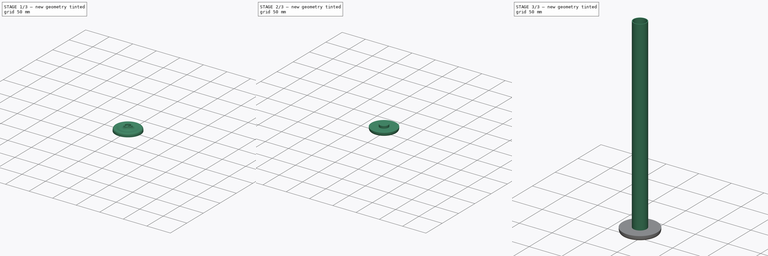
[diagram: build sequence overview — one tinted view per stage of 3, left to right]
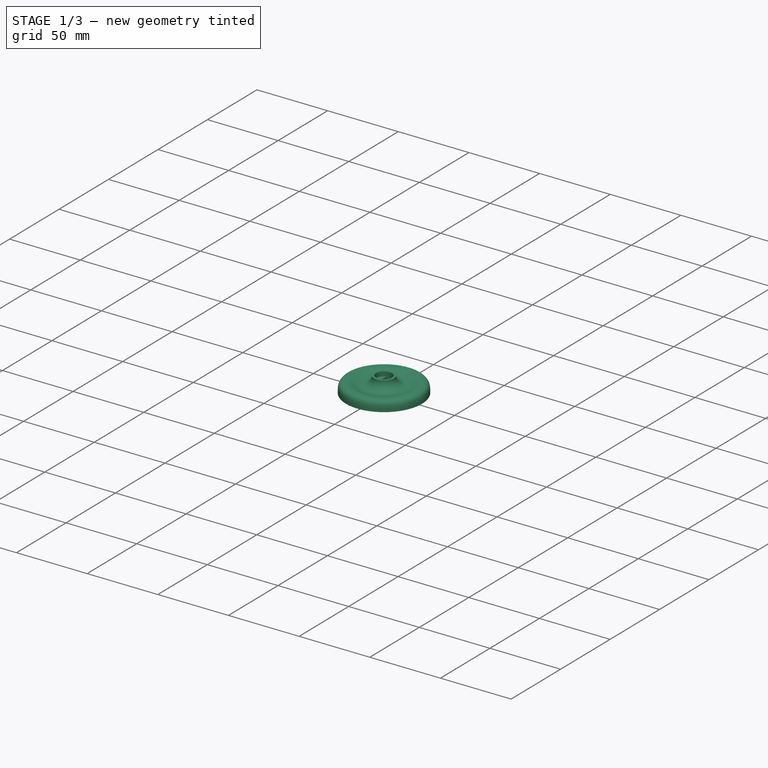
[diagram: stage 1 of 3 — iso view after this stage's code; geometry added in this stage tinted green]
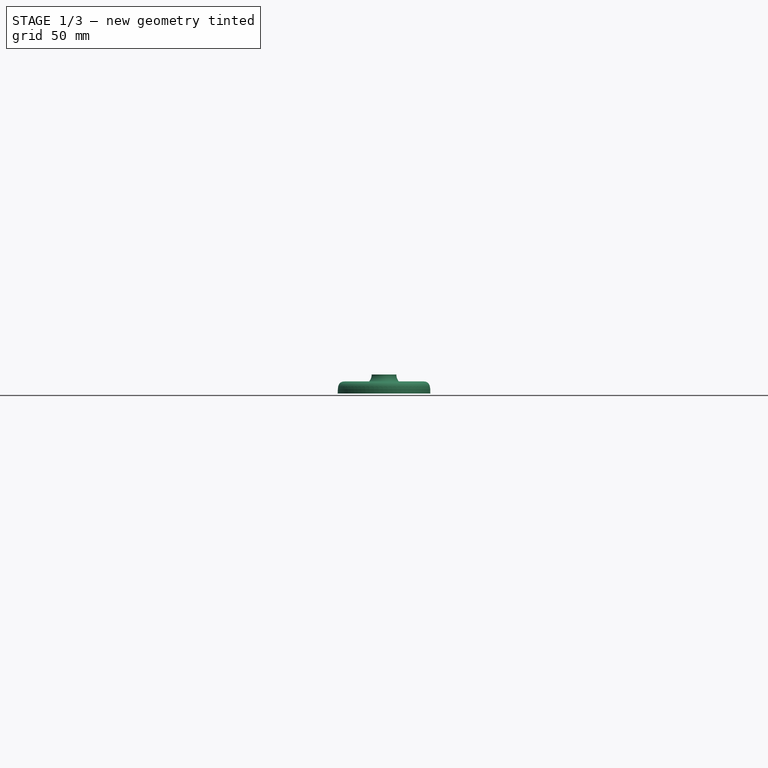
[diagram: stage 1 of 3 — front view after this stage's code; geometry added in this stage tinted green]
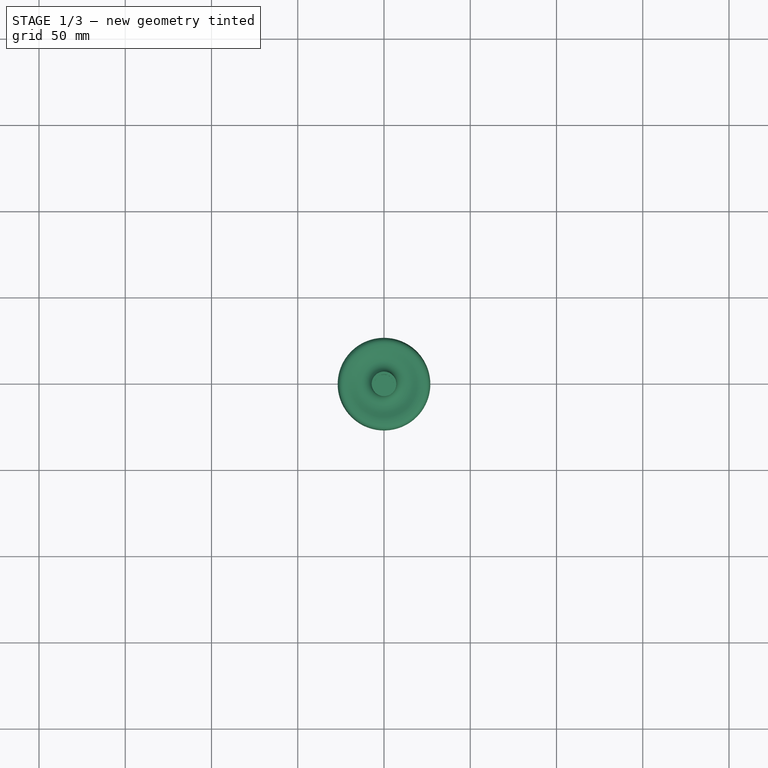
[diagram: stage 1 of 3 — top view after this stage's code; geometry added in this stage tinted green]
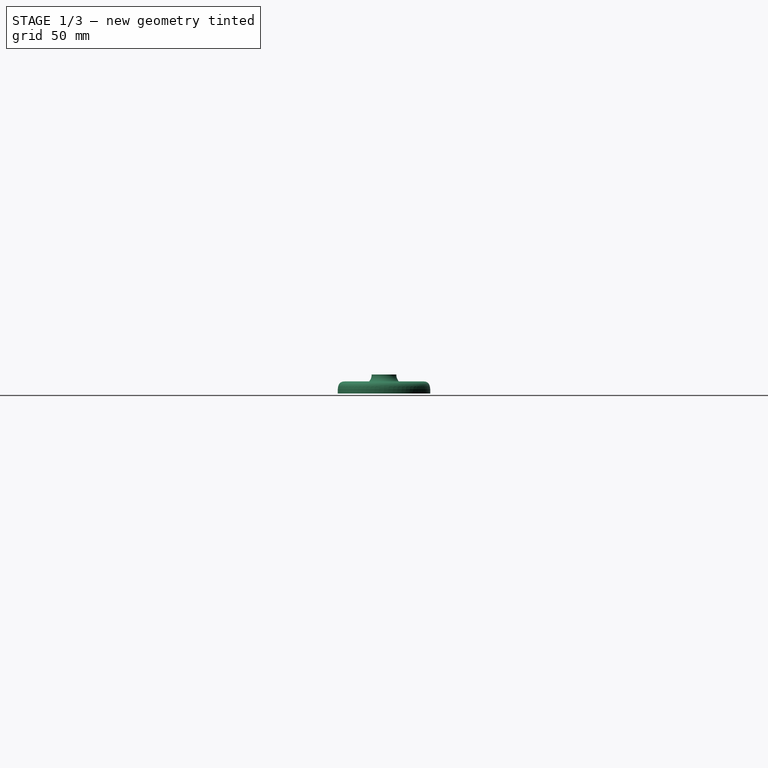
[diagram: stage 1 of 3 — right view after this stage's code; geometry added in this stage tinted green]
FCSTD DOCUMENT  (FreeCAD 1.0R39319 (Git))
Label: roll
License: All rights reserved
LicenseURL: https://en.wikipedia.org/wiki/All_rights_reserved
objects: Sketcher::SketchObject×5, PartDesign::Pad×2, PartDesign::Body×2, PartDesign::Revolution×1, PartDesign::Pocket×1, App::VarSet×1, PartDesign::Hole×1, Part::Mirroring×1
note: 28 computed .brp shape members not serialized (recipe doc carries the construction recipe); baked Part::Feature solids carry a one-line shape summary decoded from their .brp

FEATURE [Sketcher::SketchObject] Sketch
  ArcFitTolerance = 1e-06
  AttachmentSupport = -> [XZ_Plane001]
  FullyConstrained = true
  MakeInternals = false
  MapMode = 5
  Placement = pos=(0,0,0) rot=(1,0,0;1.5708rad)
  sketch-geometry (25):
    g0: LineSegment StartX=0 StartY=0 StartZ=0 EndX=0 EndY=7.85 EndZ=0
    g1: LineSegment StartX=0 StartY=7.85 StartZ=0 EndX=5.5 EndY=7.85 EndZ=0
    g2: LineSegment StartX=5.5 StartY=7.85 StartZ=0 EndX=5.5 EndY=11 EndZ=0
    g3: LineSegment StartX=5.5 StartY=11 StartZ=0 EndX=7.15 EndY=11 EndZ=0
    g4: LineSegment [constr] StartX=7.15 StartY=11 StartZ=0 EndX=13.25 EndY=11 EndZ=0
    g5: ArcOfCircle CenterX=13.25 CenterY=11 CenterZ=0 NormalX=0 NormalY=0 NormalZ=1 AngleXU=0 Radius=6.1 StartAngle=3.14159 EndAngle=4.71239
    g6: LineSegment StartX=0 StartY=0 StartZ=0 EndX=26.85 EndY=0 EndZ=0
    g7: GeomPoint [constr] X=26.85 Y=0 Z=0
    g8: GeomPoint [constr] X=22.75 Y=7 Z=0
    g9: BSplineCurve PolesCount=4 KnotsCount=2 Degree=3 IsPeriodic=0
    g10-g13: Circle [constr] x4 (B-spline internal-alignment scaffolding for g9; pole/knot coordinates omitted)
    g14: LineSegment [constr] StartX=26.85 StartY=0 StartZ=0 EndX=26.85 EndY=3.5 EndZ=0
    g15: LineSegment [constr] StartX=22.75 StartY=7 StartZ=0 EndX=26.85 EndY=7 EndZ=0
    g16: GeomPoint [constr] X=13.25 Y=4.9 Z=0
    g17: GeomPoint [constr] X=22.75 Y=7 Z=0
    g18: BSplineCurve PolesCount=4 KnotsCount=2 Degree=3 IsPeriodic=0
    g19-g22: Circle [constr] x4 (B-spline internal-alignment scaffolding for g18; pole/knot coordinates omitted)
    g23: LineSegment [constr] StartX=18.65 StartY=7 StartZ=0 EndX=22.75 EndY=7 EndZ=0
    g24: LineSegment [constr] StartX=17.35 StartY=4.9 StartZ=0 EndX=13.25 EndY=4.9 EndZ=0
  constraints (62):
    c: Distance(g0) = 7.85
    c: Coincident(g0,g-1)
    c: PointOnObject(g0,g-2)
    c: Distance(g1) = 5.5
    c: Coincident(g1,g0)
    c: Horizontal(g1)
    c: Distance(g2) = 3.15
    c: Coincident(g2,g1)
    c: Vertical(g2)
    c: Distance(g3) = 1.65
    c: Coincident(g3,g2)
    c: Horizontal(g3)
    c: Distance(g4) = 6.1
    c: Coincident(g4,g3)
    c: Horizontal(g4)
    c: Angle(g5) = 1.5708
    c: PointOnObject(g5,g4)
    c: Coincident(g5,g3)
    c: DistanceX(g3,g5) = 6.1
    c: Distance(g6) = 26.85
    c: Coincident(g6,g0)
    c: PointOnObject(g6,g-1)
    c: InternalAlignment(g7,g9)
    c: InternalAlignment(g8,g9)
    c: InternalAlignment(g10,g9)
    c: Weight(g10) = 1
    c: InternalAlignment(g11,g9)
    c: Equal(g11,g10)
    c: InternalAlignment(g12,g9)
    c: Equal(g12,g10)
    c: InternalAlignment(g13,g9)
    c: Equal(g13,g10)
    c: Coincident(g7,g6)
    c: DistanceY(g-1,g9) = 7
    c: DistanceX(g9,g9) = 4.1
    c: Coincident(g14,g9)
    c: Coincident(g14,g11)
    c: Parallel(g14,g0)
    c: Coincident(g15,g9)
    c: Coincident(g15,g12)
    c: Parallel(g15,g6)
    c: Symmetric(g12,g6,g11)
    c: InternalAlignment(g16,g18)
    c: InternalAlignment(g17,g18)
    c: InternalAlignment(g19,g18)
    c: Weight(g19) = 1
    c: InternalAlignment(g20,g18)
    c: Equal(g20,g19)
    c: InternalAlignment(g21,g18)
    c: Equal(g21,g19)
    c: InternalAlignment(g22,g18)
    c: Equal(g22,g19)
    c: Coincident(g16,g5)
    c: Coincident(g17,g9)
    c: Coincident(g23,g21)
    c: Coincident(g23,g18)
    c: Coincident(g24,g20)
    c: Coincident(g24,g18)
    c: Parallel(g23,g6)
    c: Parallel(g24,g6)
    c: Equal(g23,g24)
    c: Equal(g23,g15)
FEATURE [PartDesign::Revolution] Revolution
  Angle = 360
  Angle2 = 60
  Axis = (0,2e-16,1)
  Base = (0,0,0)
  Placement = pos=(0,0,0) rot=(1,0,0;1.5708rad)
  Profile = -> Sketch
  ReferenceAxis = -> Sketch [V_Axis]
  Refine = true
  Reversed = true
  Suppressed = false
  Type = 0
FEATURE [Sketcher::SketchObject] Sketch001
  ArcFitTolerance = 1e-06
  AttachmentSupport = -> [Revolution]
  ExternalGeometry = -> [Revolution]
  FullyConstrained = true
  MakeInternals = false
  MapMode = 5
  Placement = pos=(0,3.5e-15,7.85) rot=(0,0,1;3.14159rad)
  sketch-geometry (4):
    g0: LineSegment StartX=1.75 StartY=-5.21416 StartZ=0 EndX=1.75 EndY=5.21416 EndZ=0
    g1: LineSegment StartX=-1.75 StartY=-5.21416 StartZ=0 EndX=-1.75 EndY=5.21416 EndZ=0
    g2: ArcOfCircle CenterX=0 CenterY=0 CenterZ=0 NormalX=0 NormalY=0 NormalZ=1 AngleXU=0 Radius=5.5 StartAngle=1.24699 EndAngle=1.89461
    g3: ArcOfCircle CenterX=0 CenterY=0 CenterZ=0 NormalX=0 NormalY=0 NormalZ=1 AngleXU=0 Radius=5.5 StartAngle=4.38858 EndAngle=5.0362
  constraints (12):
    c: Vertical(g0)
    c: Vertical(g1)
    c: Coincident(g2,g-1)
    c: Coincident(g2,g0)
    c: Coincident(g2,g1)
    c: Coincident(g3,g2)
    c: Coincident(g3,g1)
    c: Coincident(g3,g0)
    c: DistanceX(g2,g0) = 1.75
    c: Equal(g1,g0)
    c: PointOnObject(g1,g-3)
    c: PointOnObject(g1,g-3)
FEATURE [PartDesign::Pocket] Pocket
  BaseFeature = -> Revolution
  Direction = (0,0,-1)
  Length = 5.85
  Length2 = 5
  Placement = pos=(0,0,0) rot=(1,0,0;1.5708rad)
  Profile = -> Sketch001
  ReferenceAxis = -> Sketch001 [N_Axis]
  Refine = true
  Suppressed = false
  Type = 0
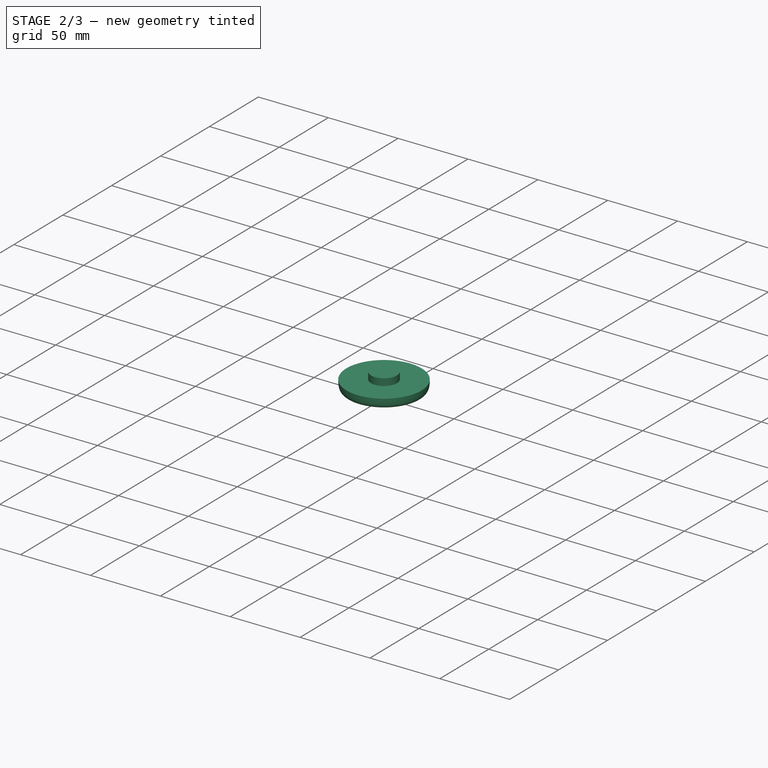
[diagram: stage 2 of 3 — iso view after this stage's code; geometry added in this stage tinted green]
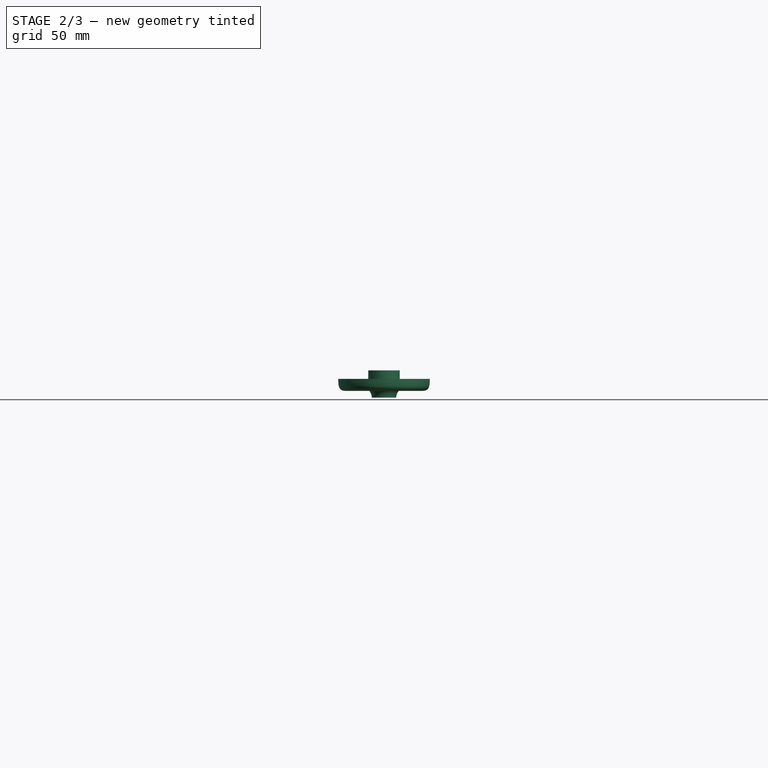
[diagram: stage 2 of 3 — front view after this stage's code; geometry added in this stage tinted green]
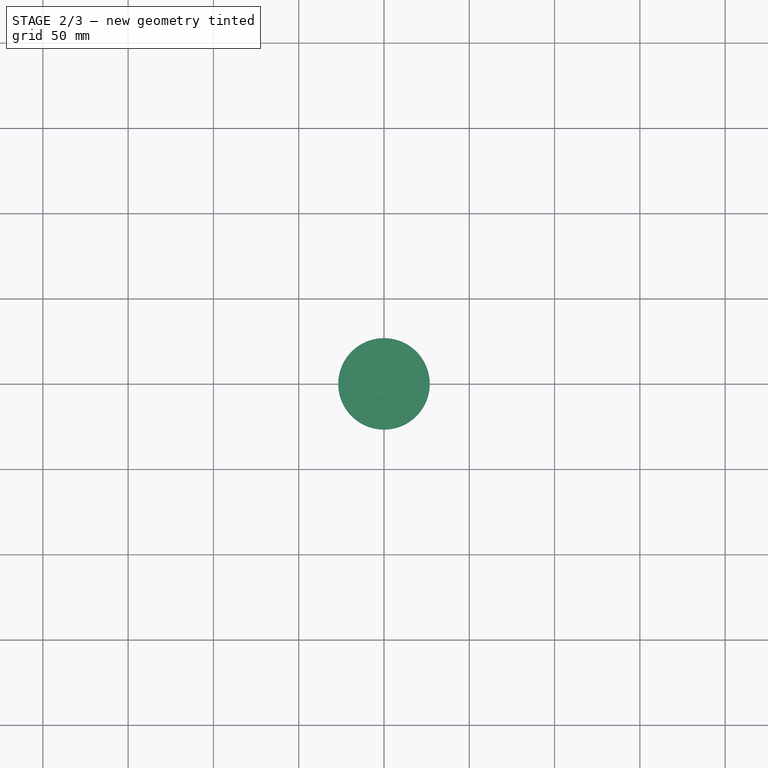
[diagram: stage 2 of 3 — top view after this stage's code; geometry added in this stage tinted green]
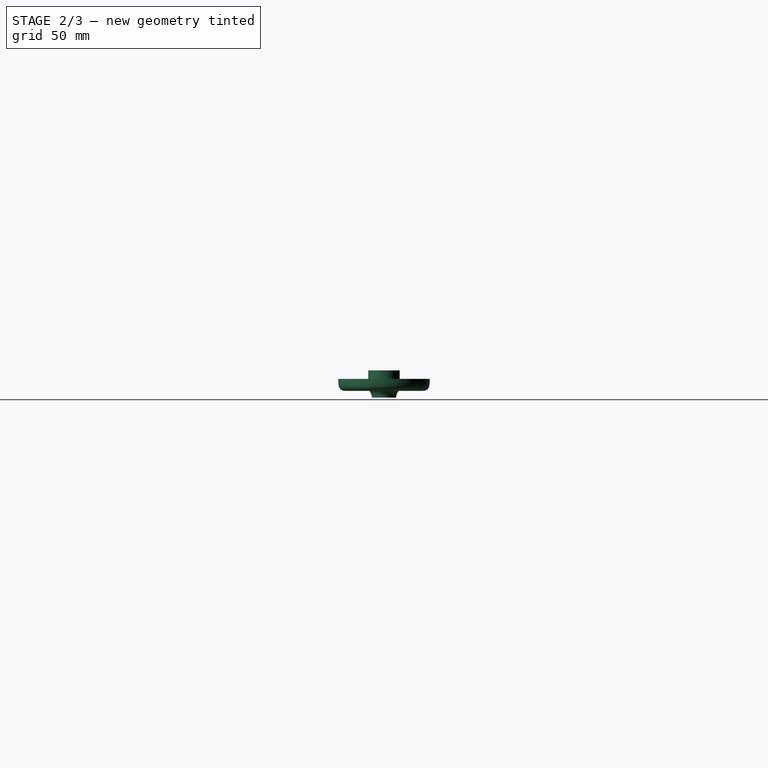
[diagram: stage 2 of 3 — right view after this stage's code; geometry added in this stage tinted green]
FEATURE [Sketcher::SketchObject] Sketch002
  ArcFitTolerance = 1e-06
  AttachmentSupport = -> [XY_Plane001]
  FullyConstrained = true
  MakeInternals = false
  MapMode = 5
  expr: Constraints[0] = VarSet.id
  sketch-geometry (1):
    g0: Circle CenterX=0 CenterY=0 CenterZ=0 NormalX=0 NormalY=0 NormalZ=1 AngleXU=0 Radius=9.25
  constraints (2):
    c: Diameter(g0) = 18.5
    c: Coincident(g0,g-1)
FEATURE [PartDesign::Pad] Pad
  BaseFeature = -> Pocket
  Direction = (0,0,1)
  Length = 5
  Length2 = 10
  Placement = pos=(0,0,0) rot=(1,0,0;1.5708rad)
  Profile = -> Sketch002
  ReferenceAxis = -> Sketch002 [N_Axis]
  Refine = true
  Reversed = true
  Suppressed = false
  Type = 0
FEATURE [PartDesign::Body] Body  label="Spool"
  AllowCompound = false
  Group = -> [Sketch003,Pad001,Sketch004,Hole]
  Origin = -> Origin
  Tip = -> Hole
FEATURE [Part::Mirroring] Part__Mirroring  label="EndCap (Mirror #1)"
  Base = (0,0,-142.875)
  Normal = (0,0,1)
  Source = -> Body001
  expr: .Base.z = -VarSet.length / 2
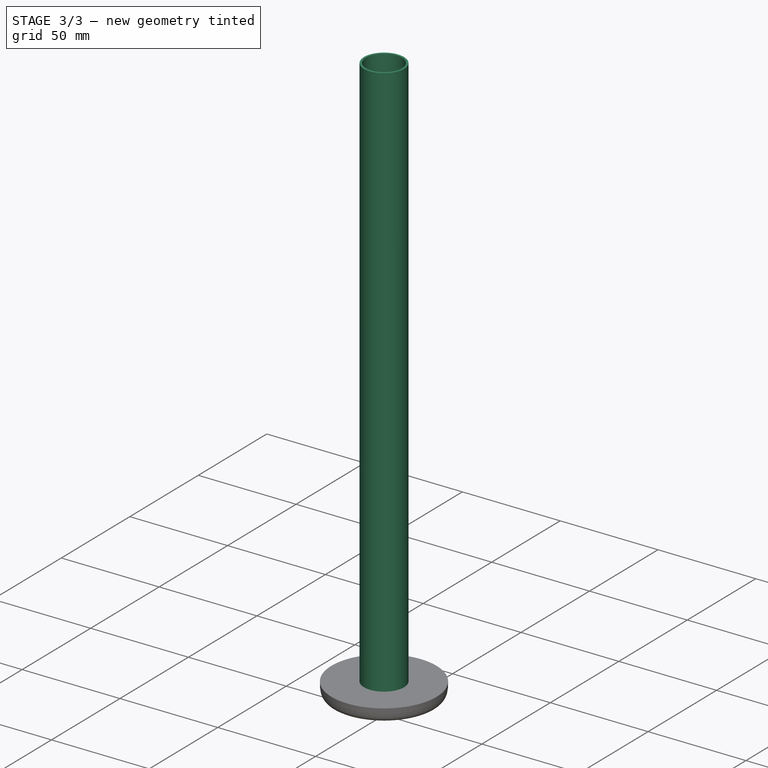
[diagram: stage 3 of 3 — iso view after this stage's code; geometry added in this stage tinted green]
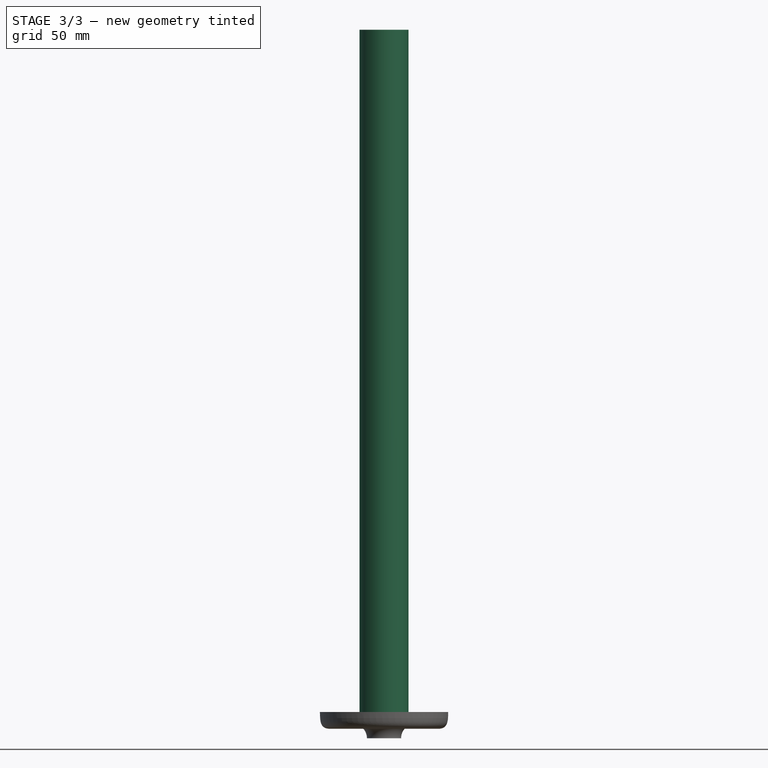
[diagram: stage 3 of 3 — front view after this stage's code; geometry added in this stage tinted green]
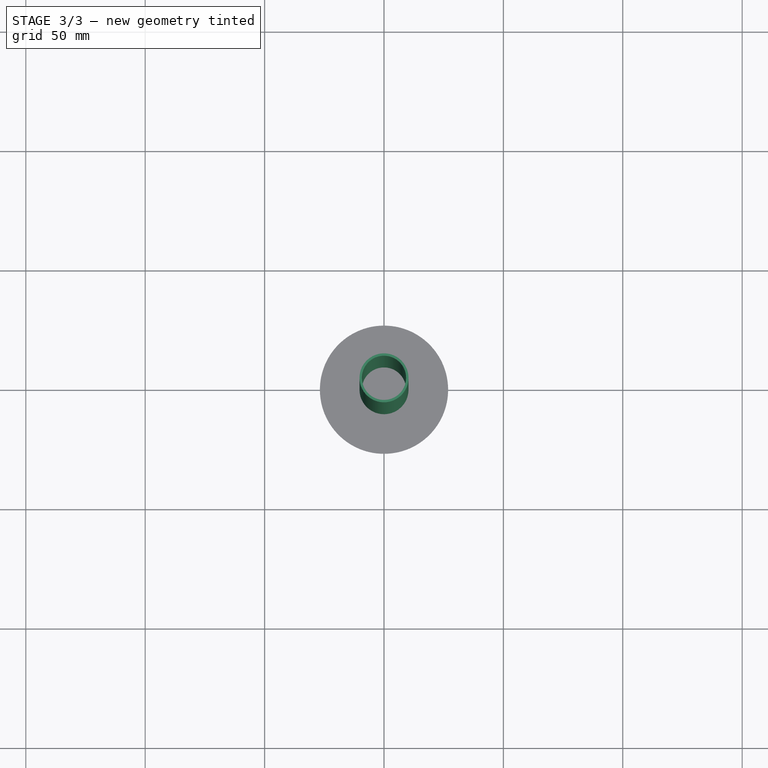
[diagram: stage 3 of 3 — top view after this stage's code; geometry added in this stage tinted green]
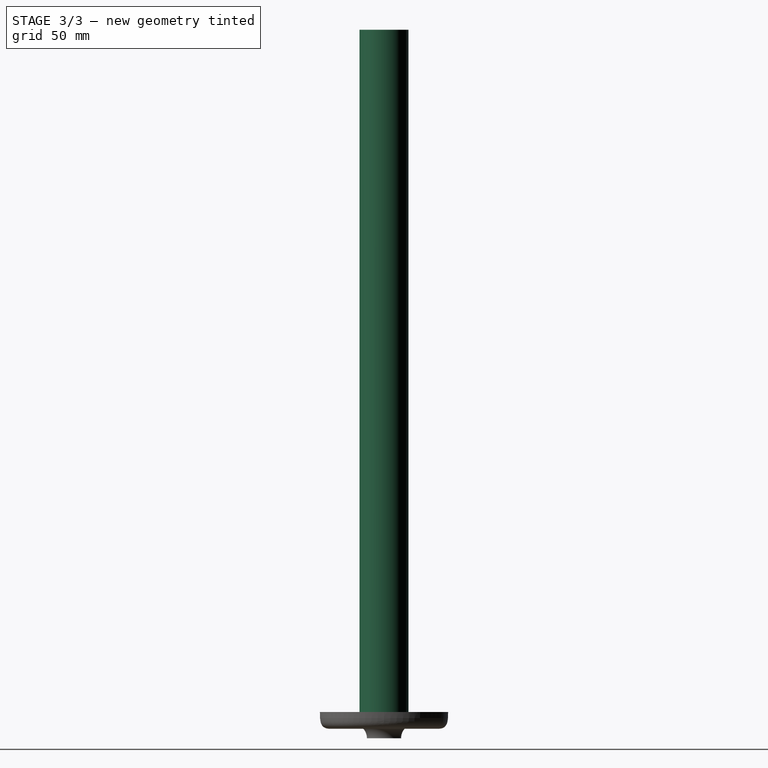
[diagram: stage 3 of 3 — right view after this stage's code; geometry added in this stage tinted green]
FEATURE [PartDesign::Body] Body001  label="EndCap"
  AllowCompound = false
  Group = -> [Sketch,Revolution,Sketch001,Pocket,Sketch002,Pad]
  Origin = -> Origin001
  Tip = -> Pad
FEATURE [Sketcher::SketchObject] Sketch003
  ArcFitTolerance = 1e-06
  AttachmentSupport = -> [XY_Plane]
  FullyConstrained = true
  MakeInternals = false
  MapMode = 5
  expr: Constraints[1] = VarSet.od
  sketch-geometry (1):
    g0: Circle CenterX=0 CenterY=0 CenterZ=0 NormalX=0 NormalY=0 NormalZ=1 AngleXU=0 Radius=10.25
  constraints (2):
    c: Coincident(g0,g-1)
    c: Diameter(g0) = 20.5
FEATURE [App::VarSet] VarSet
  id = 18.5
  length = 285.75
  od = 20.5
  expr: od = id + 2 mm
FEATURE [PartDesign::Pad] Pad001
  Direction = (0,0,1)
  Length = 285.75
  Length2 = 10
  Profile = -> Sketch003 [Edge1]
  ReferenceAxis = -> Sketch003 [N_Axis]
  Refine = true
  Reversed = true
  Suppressed = false
  Type = 0
  expr: Length = VarSet.length
FEATURE [Sketcher::SketchObject] Sketch004
  ArcFitTolerance = 1e-06
  AttachmentSupport = -> [Pad001]
  FullyConstrained = true
  MakeInternals = false
  MapMode = 5
  Placement = pos=(0,0,-285.75) rot=(1,0,0;3.14159rad)
  expr: Constraints[1] = VarSet.id
  sketch-geometry (1):
    g0: Circle CenterX=0 CenterY=0 CenterZ=0 NormalX=0 NormalY=0 NormalZ=1 AngleXU=0 Radius=9.25
  constraints (2):
    c: Coincident(g0,g-1)
    c: Diameter(g0) = 18.5
FEATURE [PartDesign::Hole] Hole
  BaseFeature = -> Pad001
  CustomThreadClearance = 0
  Depth = 580.157
  DepthType = 1
  Diameter = 18.5
  DrillForDepth = false
  DrillPoint = 1
  DrillPointAngle = 118
  HoleCutCountersinkAngle = 90
  HoleCutCustomValues = false
  HoleCutDepth = 0
  HoleCutDiameter = 0
  HoleCutType = 0
  ModelThread = false
  Profile = -> Sketch004
  Refine = true
  Suppressed = false
  Tapered = false
  TaperedAngle = 90
  ThreadClass = 0
  ThreadDepth = 580.157
  ThreadDepthType = 0
  ThreadDirection = 0
  ThreadFit = 0
  ThreadSize = 0
  ThreadType = 0
  Threaded = false
  UseCustomThreadClearance = false
  expr: Diameter = VarSet.id
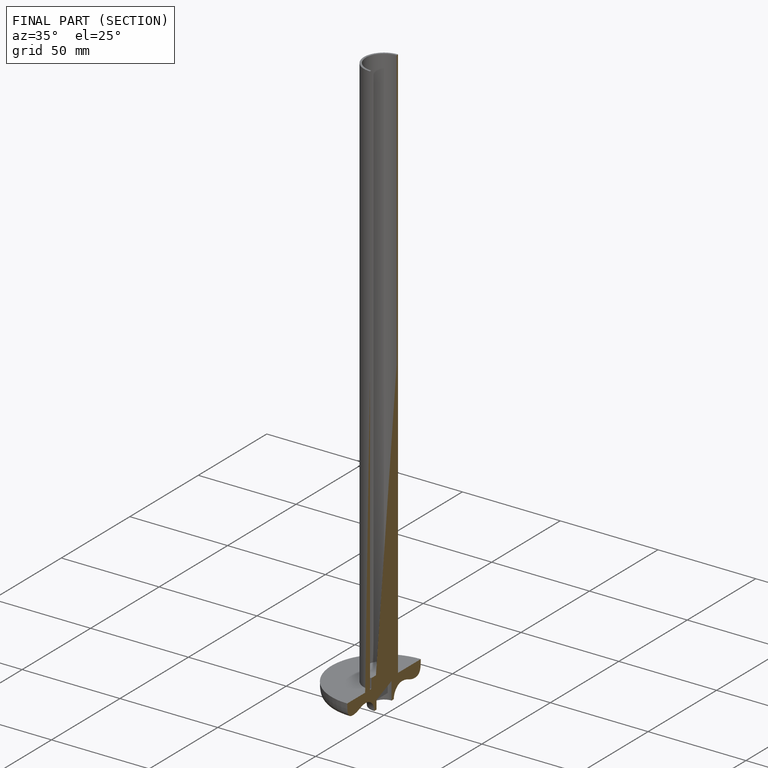
[diagram: finished part — half-section view (interior)]
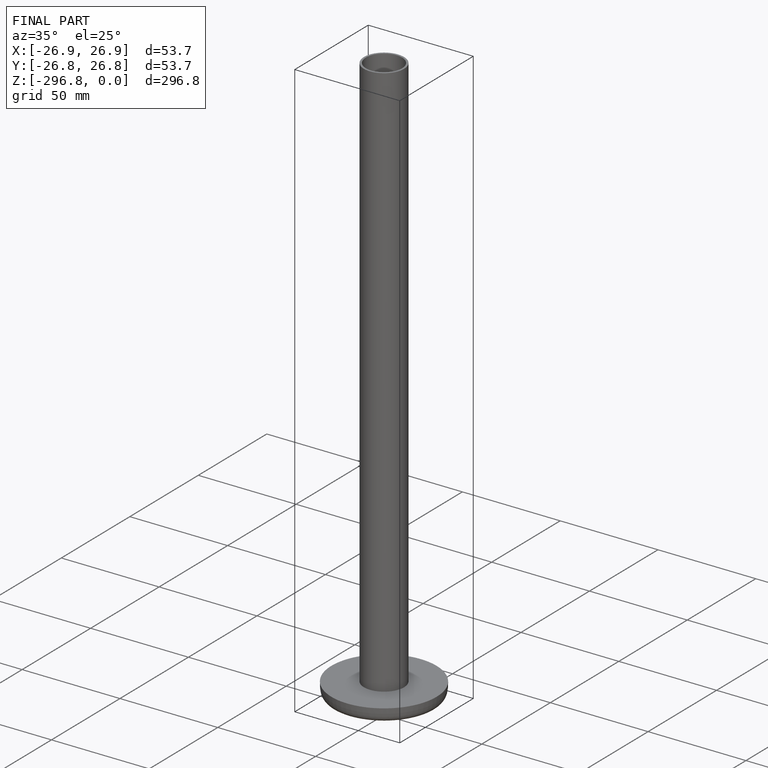
[diagram: finished part — iso view with bounding-box wireframe]
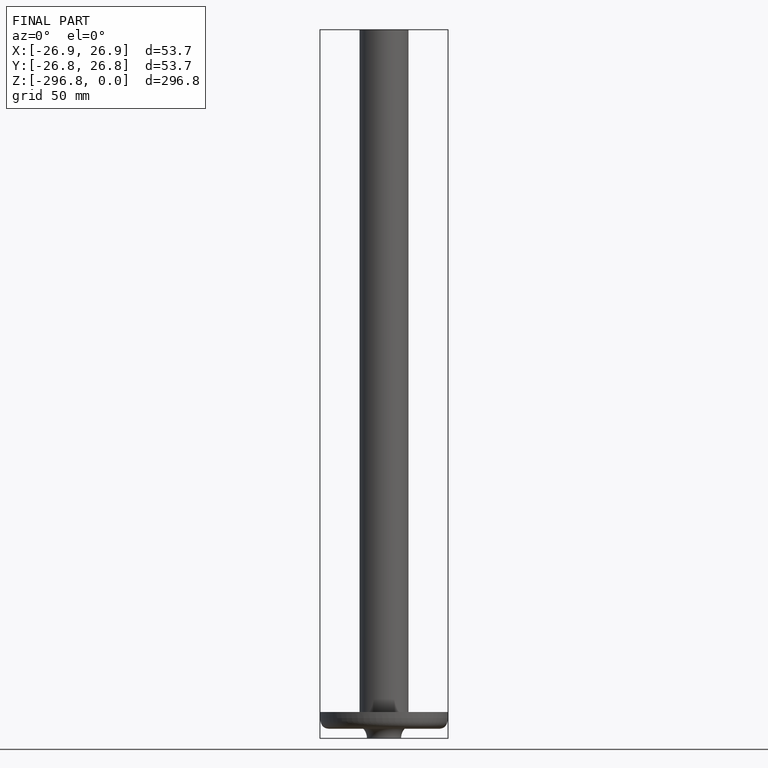
[diagram: finished part — front view with bounding-box wireframe]
